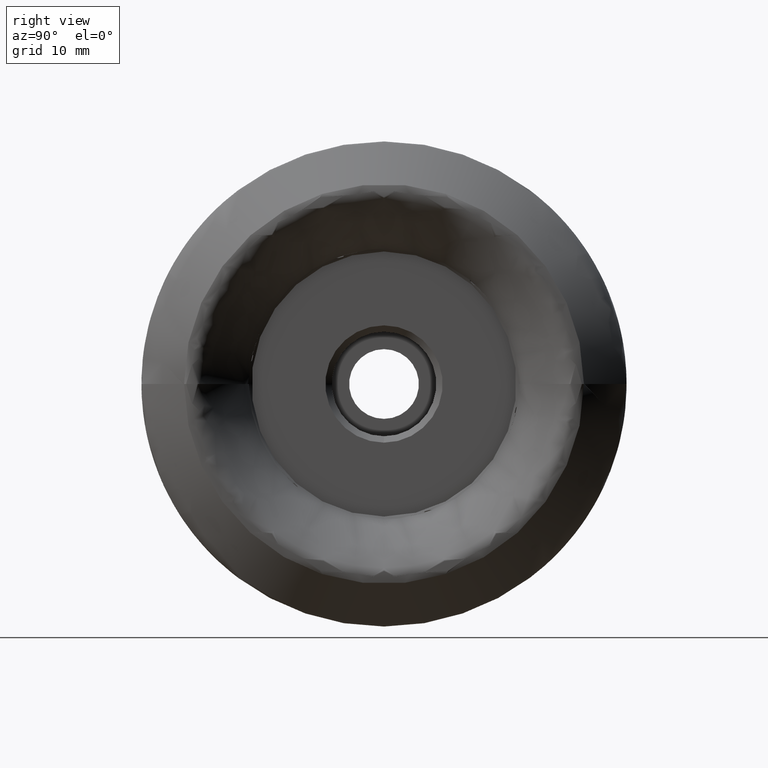
[diagram: clean part render]
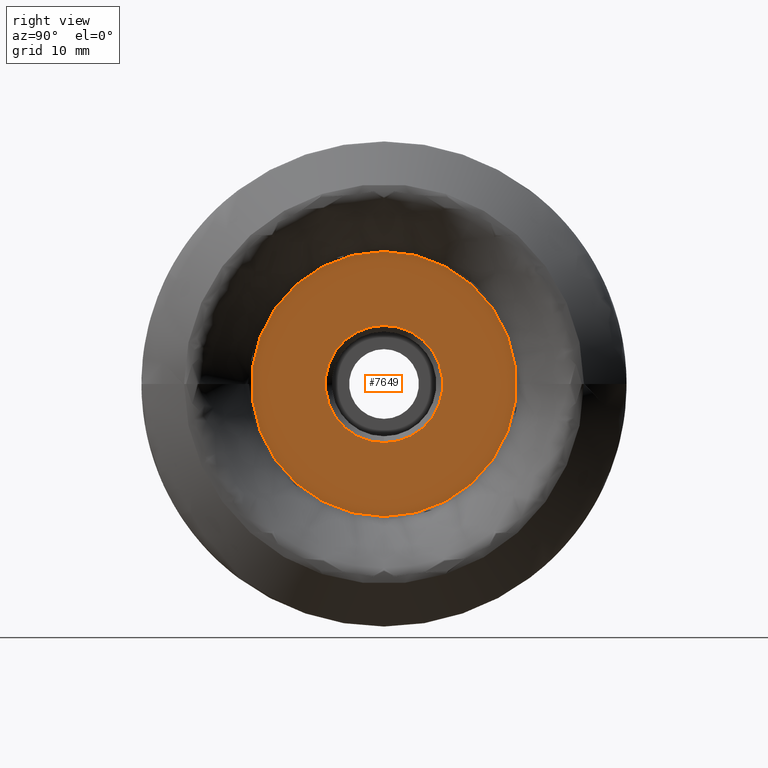
[diagram: same view with one face highlighted and labeled with its STEP entity id]
A machine part, right view. The second image highlights one B-rep face of the part: STEP entity #7649.
In plain terms, the highlighted planar face has unit normal (-1, 0, 0).
Its self-contained STEP definition (entity closure, byte-faithful):
#59 = ORIENTED_EDGE ( 'NONE', *, *, #2577, .T. ) ;
#238 = CARTESIAN_POINT ( 'NONE',  ( -7.799999999999998000, 0.0000000000000000000, 0.0000000000000000000 ) ) ;
#506 = DIRECTION ( 'NONE',  ( 0.0000000000000000000, 0.0000000000000000000, -1.000000000000000000 ) ) ;
#528 = VERTEX_POINT ( 'NONE', #11187 ) ;
#850 = AXIS2_PLACEMENT_3D ( 'NONE', #8716, #5046, #11478 ) ;
#1175 = DIRECTION ( 'NONE',  ( 0.0000000000000000000, 0.0000000000000000000, -1.000000000000000000 ) ) ;
#1278 = PLANE ( 'NONE',  #850 ) ;
#1585 = AXIS2_PLACEMENT_3D ( 'NONE', #4966, #11406, #5899 ) ;
#2149 = CIRCLE ( 'NONE', #4403, 20.89999999999992000 ) ;
#2577 = EDGE_CURVE ( 'NONE', #11023, #4247, #2149, .T. ) ;
#2940 = CARTESIAN_POINT ( 'NONE',  ( -7.799999999999998000, 0.0000000000000000000, -9.250000000000007100 ) ) ;
#2986 = CARTESIAN_POINT ( 'NONE',  ( -7.799999999999999800, 2.584154838051926800E-015, 20.89999999999992000 ) ) ;
#3238 = DIRECTION ( 'NONE',  ( 1.000000000000000000, -0.0000000000000000000, -0.0000000000000000000 ) ) ;
#3440 = EDGE_CURVE ( 'NONE', #4247, #11023, #10893, .T. ) ;
#3734 = EDGE_LOOP ( 'NONE', ( #8153, #59 ) ) ;
#4247 = VERTEX_POINT ( 'NONE', #5804 ) ;
#4403 = AXIS2_PLACEMENT_3D ( 'NONE', #11582, #6078, #506 ) ;
#4691 = CIRCLE ( 'NONE', #9620, 9.250000000000007100 ) ;
#4966 = CARTESIAN_POINT ( 'NONE',  ( -7.799999999999998000, 0.0000000000000000000, 0.0000000000000000000 ) ) ;
#5046 = DIRECTION ( 'NONE',  ( -1.000000000000000000, 0.0000000000000000000, 0.0000000000000000000 ) ) ;
#5540 = FACE_OUTER_BOUND ( 'NONE', #3734, .T. ) ;
#5804 = CARTESIAN_POINT ( 'NONE',  ( -7.799999999999999800, 0.0000000000000000000, -20.89999999999992000 ) ) ;
#5899 = DIRECTION ( 'NONE',  ( 0.0000000000000000000, 0.0000000000000000000, -1.000000000000000000 ) ) ;
#6078 = DIRECTION ( 'NONE',  ( 1.000000000000000000, -0.0000000000000000000, -0.0000000000000000000 ) ) ;
#6756 = DIRECTION ( 'NONE',  ( 1.000000000000000000, -0.0000000000000000000, -0.0000000000000000000 ) ) ;
#6926 = EDGE_CURVE ( 'NONE', #8363, #528, #4691, .T. ) ;
#7082 = CIRCLE ( 'NONE', #1585, 9.250000000000007100 ) ;
#7649 = ADVANCED_FACE ( 'NONE', ( #10435, #5540 ), #1278, .F. ) ;
#8153 = ORIENTED_EDGE ( 'NONE', *, *, #3440, .T. ) ;
#8363 = VERTEX_POINT ( 'NONE', #2940 ) ;
#8716 = CARTESIAN_POINT ( 'NONE',  ( -7.799999999999998900, 20.89999999999992000, 0.0000000000000000000 ) ) ;
#8809 = CARTESIAN_POINT ( 'NONE',  ( -7.799999999999999800, 0.0000000000000000000, 0.0000000000000000000 ) ) ;
#8908 = AXIS2_PLACEMENT_3D ( 'NONE', #8809, #3238, #9714 ) ;
#9606 = ORIENTED_EDGE ( 'NONE', *, *, #6926, .F. ) ;
#9620 = AXIS2_PLACEMENT_3D ( 'NONE', #238, #6756, #1175 ) ;
#9714 = DIRECTION ( 'NONE',  ( 0.0000000000000000000, 0.0000000000000000000, -1.000000000000000000 ) ) ;
#10435 = FACE_BOUND ( 'NONE', #11664, .T. ) ;
#10893 = CIRCLE ( 'NONE', #8908, 20.89999999999992000 ) ;
#11023 = VERTEX_POINT ( 'NONE', #2986 ) ;
#11187 = CARTESIAN_POINT ( 'NONE',  ( -7.799999999999998000, 1.132798289211302500E-015, 9.250000000000007100 ) ) ;
#11219 = ORIENTED_EDGE ( 'NONE', *, *, #11642, .F. ) ;
#11406 = DIRECTION ( 'NONE',  ( 1.000000000000000000, -0.0000000000000000000, -0.0000000000000000000 ) ) ;
#11478 = DIRECTION ( 'NONE',  ( 0.0000000000000000000, 0.0000000000000000000, 1.000000000000000000 ) ) ;
#11582 = CARTESIAN_POINT ( 'NONE',  ( -7.799999999999999800, 0.0000000000000000000, 0.0000000000000000000 ) ) ;
#11642 = EDGE_CURVE ( 'NONE', #528, #8363, #7082, .T. ) ;
#11664 = EDGE_LOOP ( 'NONE', ( #9606, #11219 ) ) ;